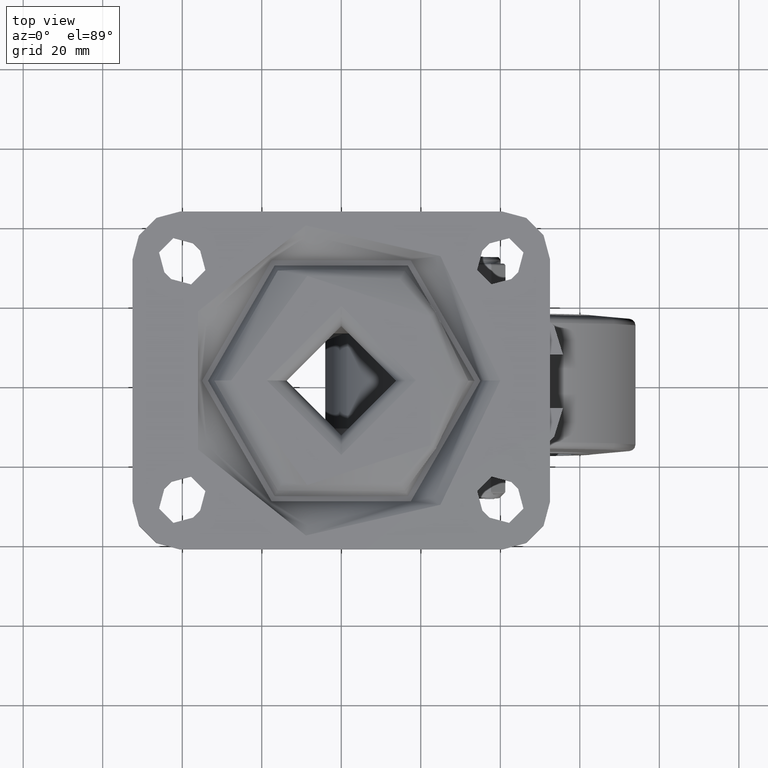
[diagram: clean part render]
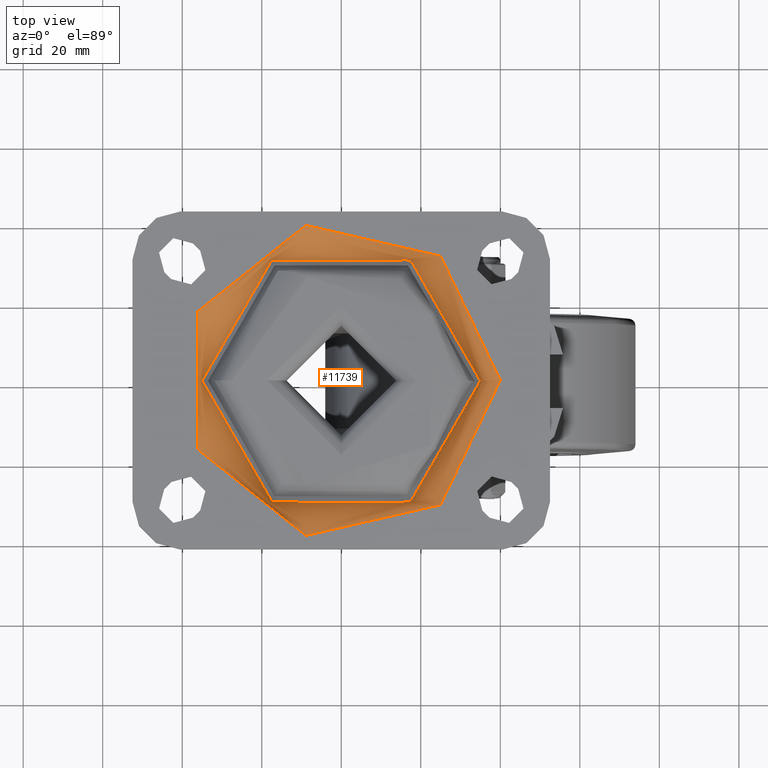
[diagram: same view with one face highlighted and labeled with its STEP entity id]
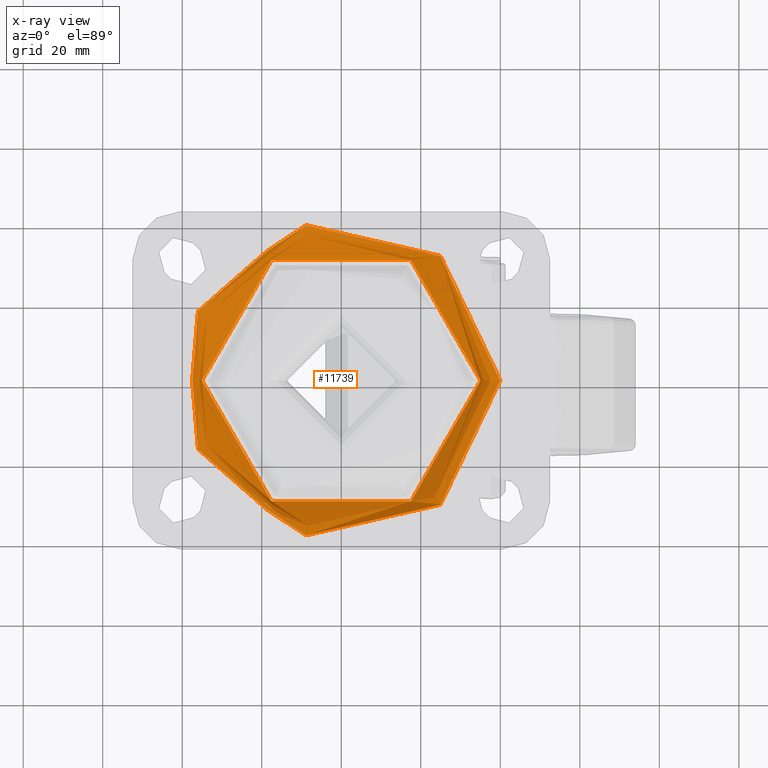
[diagram: x-ray of the same camera — body ghosted, the highlighted face saturated]
A machine part, top view. The second image highlights one B-rep face of the part: STEP entity #11739.
The next image is the same camera in x-ray: the body ghosted, the highlighted face saturated — about 0% of this face is hidden behind the body in this view.
In plain terms, the highlighted toroidal blend (fillet) surface has major radius 40 mm and minor (blend) radius 5 mm.
Its self-contained STEP definition (entity closure, byte-faithful):
#1453=TOROIDAL_SURFACE('',#12791,40.,5.);
#1875=FACE_OUTER_BOUND('',#2687,.T.);
#2687=EDGE_LOOP('',(#9629,#9630,#9631,#9632));
#4759=CIRCLE('',#12792,40.);
#4760=CIRCLE('',#12793,5.);
#4761=CIRCLE('',#12794,35.);
#5634=VERTEX_POINT('',#21295);
#5635=VERTEX_POINT('',#21297);
#7034=EDGE_CURVE('',#5634,#5634,#4759,.T.);
#7035=EDGE_CURVE('',#5634,#5635,#4760,.T.);
#7036=EDGE_CURVE('',#5635,#5635,#4761,.T.);
#9629=ORIENTED_EDGE('',*,*,#7034,.T.);
#9630=ORIENTED_EDGE('',*,*,#7035,.T.);
#9631=ORIENTED_EDGE('',*,*,#7036,.T.);
#9632=ORIENTED_EDGE('',*,*,#7035,.F.);
#11739=ADVANCED_FACE('',(#1875),#1453,.T.);
#12791=AXIS2_PLACEMENT_3D('',#21294,#14814,#14815);
#12792=AXIS2_PLACEMENT_3D('',#21296,#14816,#14817);
#12793=AXIS2_PLACEMENT_3D('',#21298,#14818,#14819);
#12794=AXIS2_PLACEMENT_3D('',#21299,#14820,#14821);
#14814=DIRECTION('center_axis',(0.,0.,-1.));
#14815=DIRECTION('ref_axis',(-1.,0.,0.));
#14816=DIRECTION('center_axis',(0.,0.,1.));
#14817=DIRECTION('ref_axis',(1.,1.22464679914735E-16,0.));
#14818=DIRECTION('center_axis',(-1.22464679914735E-16,-1.,0.));
#14819=DIRECTION('ref_axis',(1.,-1.22464679914735E-16,0.));
#14820=DIRECTION('center_axis',(0.,0.,-1.));
#14821=DIRECTION('ref_axis',(-1.,0.,0.));
#21294=CARTESIAN_POINT('Origin',(0.,0.,-5.));
#21295=CARTESIAN_POINT('',(40.,4.89858719658941E-15,0.));
#21296=CARTESIAN_POINT('Origin',(0.,0.,0.));
#21297=CARTESIAN_POINT('',(35.,4.28626379701574E-15,-5.));
#21298=CARTESIAN_POINT('Origin',(40.,-4.89858719658941E-15,-5.));
#21299=CARTESIAN_POINT('Origin',(0.,0.,-5.));